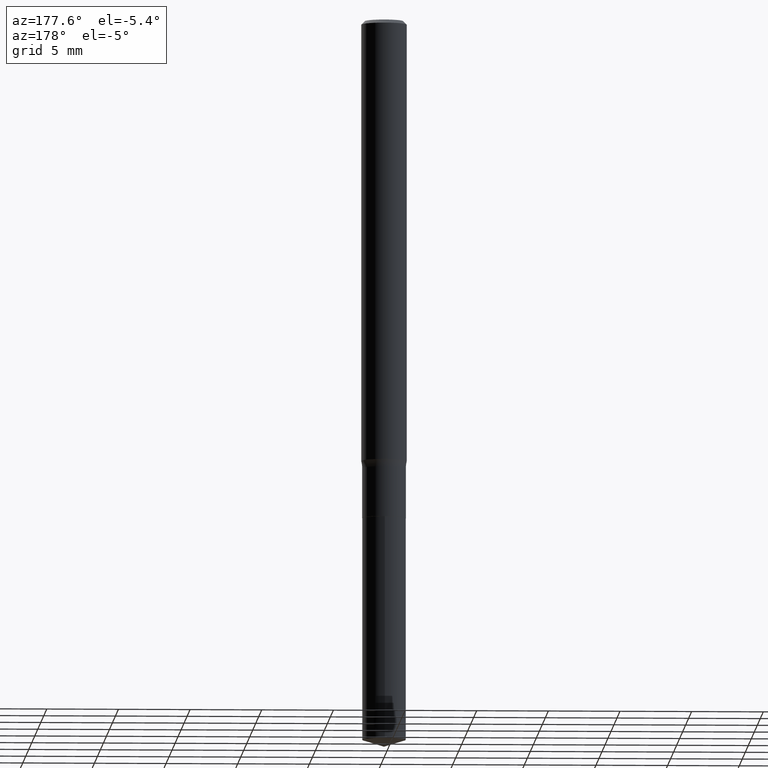
[diagram: clean part render]
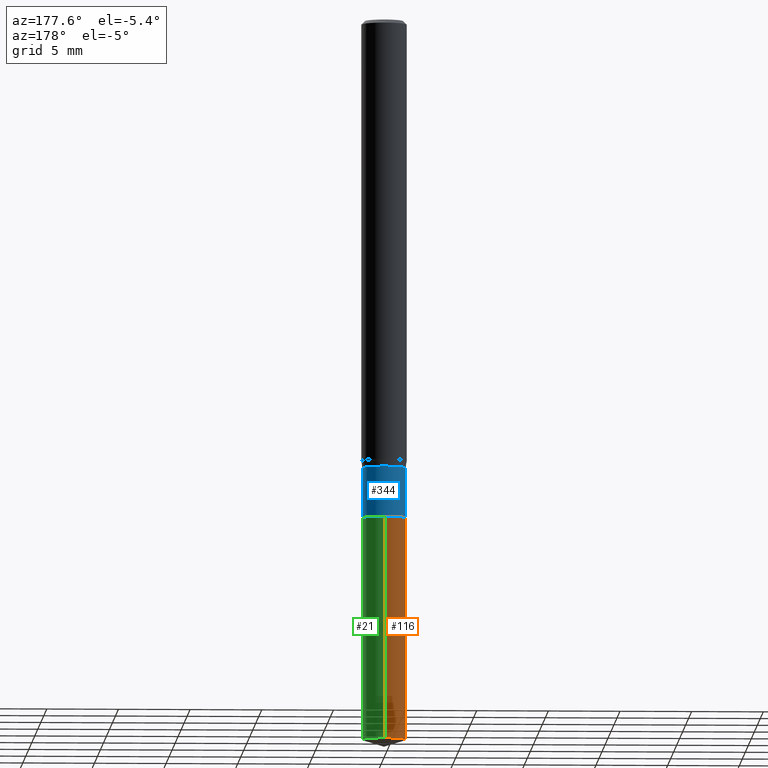
[diagram: same view with three faces highlighted in distinct colors, each labeled with its STEP entity id]
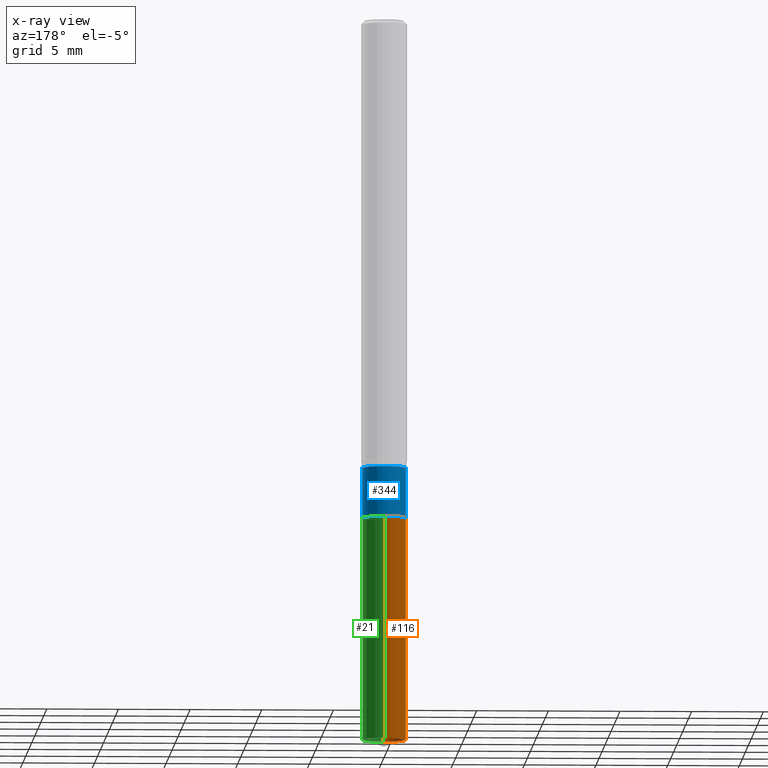
[diagram: x-ray of the same camera — body ghosted, the three highlighted faces saturated]
A machine part, auxiliary view with three faces highlighted in distinct colors.
The next image is the same camera in x-ray (body ghosted, the three faces saturated) — at least one of them is partly hidden behind the body in this view.
Their STEP definitions:

[orange] entity #116 — the highlighted cylindrical surface (edge-blend (fillet) strip) has radius 1.524 mm, axis along (-0, 0, 1).
#6 = VERTEX_POINT ( 'NONE', #291 ) ;
#8 = ORIENTED_EDGE ( 'NONE', *, *, #246, .F. ) ;
#24 = EDGE_CURVE ( 'NONE', #6, #293, #32, .T. ) ;
#32 = CIRCLE ( 'NONE', #223, 0.05999999999999999778 ) ;
#50 = DIRECTION ( 'NONE',  ( -2.445138030022323446E-29, 3.491955029134903730E-15, 1.000000000000000000 ) ) ;
#71 = DIRECTION ( 'NONE',  ( -2.445138030022323446E-29, 3.491955029134904124E-15, 1.000000000000000000 ) ) ;
#84 = CARTESIAN_POINT ( 'NONE',  ( 4.263256414561086600E-16, 0.05999999999999308664, -1.981082072667261107 ) ) ;
#91 = CARTESIAN_POINT ( 'NONE',  ( -4.189777606611424662E-16, -0.06000000000000477868, -1.369999999999999662 ) ) ;
#94 = CARTESIAN_POINT ( 'NONE',  ( 3.350292264473637048E-29, -4.783329434215109105E-15, -1.369999999999999885 ) ) ;
#116 = ADVANCED_FACE ( 'NONE', ( #446 ), #285, .T. ) ;
#138 = CIRCLE ( 'NONE', #404, 0.05999999999999999778 ) ;
#171 = ORIENTED_EDGE ( 'NONE', *, *, #440, .T. ) ;
#174 = DIRECTION ( 'NONE',  ( -2.445138030022323446E-29, 3.491955029134904124E-15, 1.000000000000000000 ) ) ;
#183 = LINE ( 'NONE', #304, #477 ) ;
#212 = DIRECTION ( 'NONE',  ( -6.982962677686265922E-15, -1.000000000000000000, 4.553079989440439092E-15 ) ) ;
#216 = DIRECTION ( 'NONE',  ( -2.445138030022323446E-29, 3.491955029134904124E-15, 1.000000000000000000 ) ) ;
#223 = AXIS2_PLACEMENT_3D ( 'NONE', #94, #174, #212 ) ;
#246 = EDGE_CURVE ( 'NONE', #400, #6, #428, .T. ) ;
#274 = CARTESIAN_POINT ( 'NONE',  ( -4.189777606611274778E-16, -0.06000000000000692280, -1.981082072667260663 ) ) ;
#285 = CYLINDRICAL_SURFACE ( 'NONE', #468, 0.05999999999999999778 ) ;
#291 = CARTESIAN_POINT ( 'NONE',  ( 4.263256414561086600E-16, 0.05999999999999521688, -1.370000000000000107 ) ) ;
#293 = VERTEX_POINT ( 'NONE', #91 ) ;
#304 = CARTESIAN_POINT ( 'NONE',  ( -4.189777606611424662E-16, -0.06000000000000477868, -1.369999999999999662 ) ) ;
#352 = CARTESIAN_POINT ( 'NONE',  ( 4.263256414560935237E-16, 0.05999999999999521688, -1.370000000000000107 ) ) ;
#353 = ORIENTED_EDGE ( 'NONE', *, *, #24, .F. ) ;
#377 = DIRECTION ( 'NONE',  ( -6.982962677686265922E-15, -1.000000000000000000, 4.553079989440439092E-15 ) ) ;
#382 = DIRECTION ( 'NONE',  ( -6.982962677686265922E-15, -1.000000000000000000, 4.553079989440439092E-15 ) ) ;
#400 = VERTEX_POINT ( 'NONE', #84 ) ;
#404 = AXIS2_PLACEMENT_3D ( 'NONE', #422, #71, #382 ) ;
#413 = EDGE_CURVE ( 'NONE', #473, #293, #183, .T. ) ;
#422 = CARTESIAN_POINT ( 'NONE',  ( 4.844472279817221330E-29, -6.917200551079731638E-15, -1.981082072667260885 ) ) ;
#424 = EDGE_LOOP ( 'NONE', ( #8, #171, #429, #353 ) ) ;
#428 = LINE ( 'NONE', #352, #437 ) ;
#429 = ORIENTED_EDGE ( 'NONE', *, *, #413, .T. ) ;
#437 = VECTOR ( 'NONE', #50, 39.37007874015748143 ) ;
#440 = EDGE_CURVE ( 'NONE', #400, #473, #138, .T. ) ;
#441 = CARTESIAN_POINT ( 'NONE',  ( 3.350292264473637048E-29, -4.783329434215109105E-15, -1.369999999999999885 ) ) ;
#446 = FACE_OUTER_BOUND ( 'NONE', #424, .T. ) ;
#459 = DIRECTION ( 'NONE',  ( -2.445138030022323446E-29, 3.491955029134903730E-15, 1.000000000000000000 ) ) ;
#468 = AXIS2_PLACEMENT_3D ( 'NONE', #441, #216, #377 ) ;
#473 = VERTEX_POINT ( 'NONE', #274 ) ;
#477 = VECTOR ( 'NONE', #459, 39.37007874015748143 ) ;

[blue] entity #344 — the highlighted cylindrical surface (edge-blend (fillet) strip) has radius 1.524 mm, axis along (-0, 0, 1).
#11 = VERTEX_POINT ( 'NONE', #25 ) ;
#25 = CARTESIAN_POINT ( 'NONE',  ( 0.05999999999999999778, -5.200561454206863446E-15, -1.369499999999999940 ) ) ;
#38 = FACE_OUTER_BOUND ( 'NONE', #124, .T. ) ;
#39 = LINE ( 'NONE', #347, #219 ) ;
#47 = VECTOR ( 'NONE', #370, 39.37007874015748143 ) ;
#54 = AXIS2_PLACEMENT_3D ( 'NONE', #384, #228, #289 ) ;
#81 = ORIENTED_EDGE ( 'NONE', *, *, #445, .T. ) ;
#124 = EDGE_LOOP ( 'NONE', ( #81, #463, #350, #189 ) ) ;
#134 = DIRECTION ( 'NONE',  ( -2.445468806185136597E-29, 3.491481338843145583E-15, 1.000000000000000000 ) ) ;
#140 = VERTEX_POINT ( 'NONE', #480 ) ;
#146 = CARTESIAN_POINT ( 'NONE',  ( -0.05999999999999998390, -4.115218710044161299E-15, -1.231999999999999762 ) ) ;
#152 = AXIS2_PLACEMENT_3D ( 'NONE', #489, #254, #299 ) ;
#154 = CARTESIAN_POINT ( 'NONE',  ( 0.05999999999999998390, -4.720482770115931032E-15, -1.231999999999999762 ) ) ;
#165 = CARTESIAN_POINT ( 'NONE',  ( 0.05999999999999999084, -4.189777606611759435E-16, 2.925706065477561055E-30 ) ) ;
#175 = CYLINDRICAL_SURFACE ( 'NONE', #152, 0.05999999999999999084 ) ;
#189 = ORIENTED_EDGE ( 'NONE', *, *, #474, .F. ) ;
#202 = CIRCLE ( 'NONE', #333, 0.05999999999999998390 ) ;
#209 = LINE ( 'NONE', #165, #47 ) ;
#219 = VECTOR ( 'NONE', #305, 39.37007874015748143 ) ;
#228 = DIRECTION ( 'NONE',  ( -2.445468806185136597E-29, 3.491481338843145583E-15, 1.000000000000000000 ) ) ;
#245 = DIRECTION ( 'NONE',  ( 1.000000000000000000, -6.982962677686269866E-15, 0.000000000000000000 ) ) ;
#254 = DIRECTION ( 'NONE',  ( -2.445468806185136597E-29, 3.491481338843145583E-15, 1.000000000000000000 ) ) ;
#256 = VERTEX_POINT ( 'NONE', #154 ) ;
#289 = DIRECTION ( 'NONE',  ( 1.000000000000000000, -6.982962677686268288E-15, 0.000000000000000000 ) ) ;
#292 = CARTESIAN_POINT ( 'NONE',  ( 3.012817569220087740E-29, -4.301505009454755187E-15, -1.231999999999999762 ) ) ;
#299 = DIRECTION ( 'NONE',  ( 1.000000000000000000, -6.982962677686266711E-15, 4.876176775795935793E-29 ) ) ;
#305 = DIRECTION ( 'NONE',  ( -2.445468806185136877E-29, 3.491481338843145188E-15, 1.000000000000000000 ) ) ;
#333 = AXIS2_PLACEMENT_3D ( 'NONE', #292, #134, #245 ) ;
#344 = ADVANCED_FACE ( 'NONE', ( #38 ), #175, .T. ) ;
#347 = CARTESIAN_POINT ( 'NONE',  ( -0.05999999999999999084, 4.263256414560600464E-16, -2.951361054152942712E-30 ) ) ;
#350 = ORIENTED_EDGE ( 'NONE', *, *, #479, .F. ) ;
#370 = DIRECTION ( 'NONE',  ( -2.445468806185136877E-29, 3.491481338843145188E-15, 1.000000000000000000 ) ) ;
#379 = VERTEX_POINT ( 'NONE', #146 ) ;
#384 = CARTESIAN_POINT ( 'NONE',  ( 3.349069530070544246E-29, -4.781583693545687601E-15, -1.369499999999999940 ) ) ;
#392 = EDGE_CURVE ( 'NONE', #140, #379, #39, .T. ) ;
#418 = CIRCLE ( 'NONE', #54, 0.05999999999999999778 ) ;
#445 = EDGE_CURVE ( 'NONE', #11, #140, #418, .T. ) ;
#463 = ORIENTED_EDGE ( 'NONE', *, *, #392, .T. ) ;
#474 = EDGE_CURVE ( 'NONE', #11, #256, #209, .T. ) ;
#479 = EDGE_CURVE ( 'NONE', #256, #379, #202, .T. ) ;
#480 = CARTESIAN_POINT ( 'NONE',  ( -0.06000000000000001166, -4.115218710044161299E-15, -1.369499999999999940 ) ) ;
#489 = CARTESIAN_POINT ( 'NONE',  ( 0.000000000000000000, 0.000000000000000000, 0.000000000000000000 ) ) ;

[green] entity #21 — the highlighted cylindrical surface (edge-blend (fillet) strip) has radius 1.524 mm, axis along (-0, 0, 1).
#1 = ORIENTED_EDGE ( 'NONE', *, *, #242, .T. ) ;
#6 = VERTEX_POINT ( 'NONE', #291 ) ;
#15 = CIRCLE ( 'NONE', #211, 0.05999999999999999778 ) ;
#18 = DIRECTION ( 'NONE',  ( -6.982962677686265922E-15, -1.000000000000000000, 4.553079989440439092E-15 ) ) ;
#21 = ADVANCED_FACE ( 'NONE', ( #328 ), #434, .T. ) ;
#50 = DIRECTION ( 'NONE',  ( -2.445138030022323446E-29, 3.491955029134903730E-15, 1.000000000000000000 ) ) ;
#52 = DIRECTION ( 'NONE',  ( -2.445138030022323446E-29, 3.491955029134904124E-15, 1.000000000000000000 ) ) ;
#55 = ORIENTED_EDGE ( 'NONE', *, *, #246, .T. ) ;
#59 = DIRECTION ( 'NONE',  ( -6.982962677686265922E-15, -1.000000000000000000, 4.553079989440439092E-15 ) ) ;
#82 = CARTESIAN_POINT ( 'NONE',  ( 3.350292264473637048E-29, -4.783329434215109105E-15, -1.369999999999999885 ) ) ;
#84 = CARTESIAN_POINT ( 'NONE',  ( 4.263256414561086600E-16, 0.05999999999999308664, -1.981082072667261107 ) ) ;
#91 = CARTESIAN_POINT ( 'NONE',  ( -4.189777606611424662E-16, -0.06000000000000477868, -1.369999999999999662 ) ) ;
#156 = CARTESIAN_POINT ( 'NONE',  ( 4.844472279817221330E-29, -6.917200551079731638E-15, -1.981082072667260885 ) ) ;
#162 = CIRCLE ( 'NONE', #430, 0.05999999999999999778 ) ;
#183 = LINE ( 'NONE', #304, #477 ) ;
#211 = AXIS2_PLACEMENT_3D ( 'NONE', #82, #432, #444 ) ;
#236 = EDGE_LOOP ( 'NONE', ( #1, #55, #482, #323 ) ) ;
#242 = EDGE_CURVE ( 'NONE', #473, #400, #162, .T. ) ;
#246 = EDGE_CURVE ( 'NONE', #400, #6, #428, .T. ) ;
#274 = CARTESIAN_POINT ( 'NONE',  ( -4.189777606611274778E-16, -0.06000000000000692280, -1.981082072667260663 ) ) ;
#282 = DIRECTION ( 'NONE',  ( -2.445138030022323446E-29, 3.491955029134904124E-15, 1.000000000000000000 ) ) ;
#286 = EDGE_CURVE ( 'NONE', #293, #6, #15, .T. ) ;
#291 = CARTESIAN_POINT ( 'NONE',  ( 4.263256414561086600E-16, 0.05999999999999521688, -1.370000000000000107 ) ) ;
#293 = VERTEX_POINT ( 'NONE', #91 ) ;
#304 = CARTESIAN_POINT ( 'NONE',  ( -4.189777606611424662E-16, -0.06000000000000477868, -1.369999999999999662 ) ) ;
#323 = ORIENTED_EDGE ( 'NONE', *, *, #413, .F. ) ;
#328 = FACE_OUTER_BOUND ( 'NONE', #236, .T. ) ;
#352 = CARTESIAN_POINT ( 'NONE',  ( 4.263256414560935237E-16, 0.05999999999999521688, -1.370000000000000107 ) ) ;
#367 = AXIS2_PLACEMENT_3D ( 'NONE', #442, #282, #59 ) ;
#400 = VERTEX_POINT ( 'NONE', #84 ) ;
#413 = EDGE_CURVE ( 'NONE', #473, #293, #183, .T. ) ;
#428 = LINE ( 'NONE', #352, #437 ) ;
#430 = AXIS2_PLACEMENT_3D ( 'NONE', #156, #52, #18 ) ;
#432 = DIRECTION ( 'NONE',  ( -2.445138030022323446E-29, 3.491955029134904124E-15, 1.000000000000000000 ) ) ;
#434 = CYLINDRICAL_SURFACE ( 'NONE', #367, 0.05999999999999999778 ) ;
#437 = VECTOR ( 'NONE', #50, 39.37007874015748143 ) ;
#442 = CARTESIAN_POINT ( 'NONE',  ( 3.350292264473637048E-29, -4.783329434215109105E-15, -1.369999999999999885 ) ) ;
#444 = DIRECTION ( 'NONE',  ( -6.982962677686265922E-15, -1.000000000000000000, 4.553079989440439092E-15 ) ) ;
#459 = DIRECTION ( 'NONE',  ( -2.445138030022323446E-29, 3.491955029134903730E-15, 1.000000000000000000 ) ) ;
#473 = VERTEX_POINT ( 'NONE', #274 ) ;
#477 = VECTOR ( 'NONE', #459, 39.37007874015748143 ) ;
#482 = ORIENTED_EDGE ( 'NONE', *, *, #286, .F. ) ;